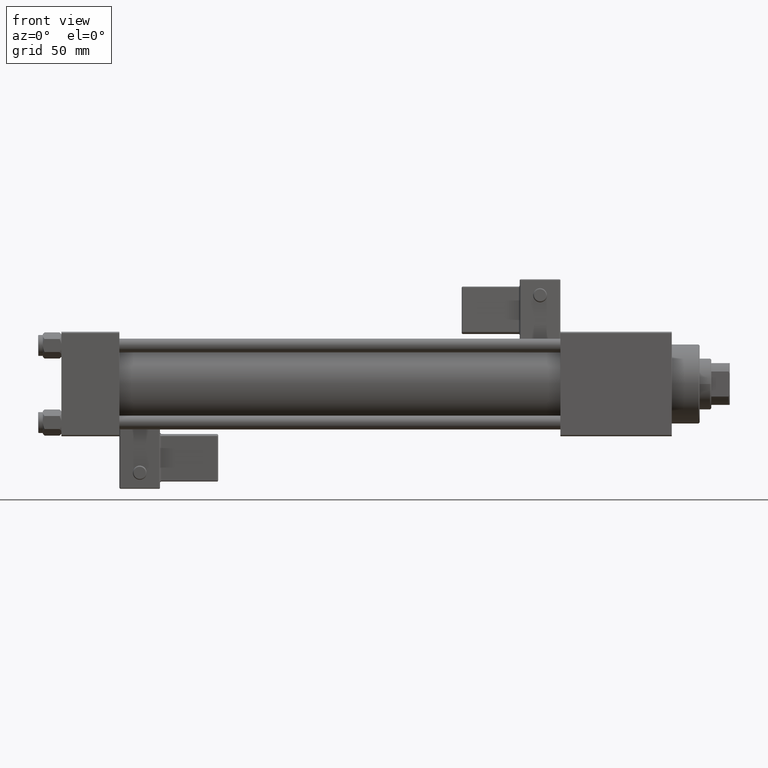
[diagram: clean part render]
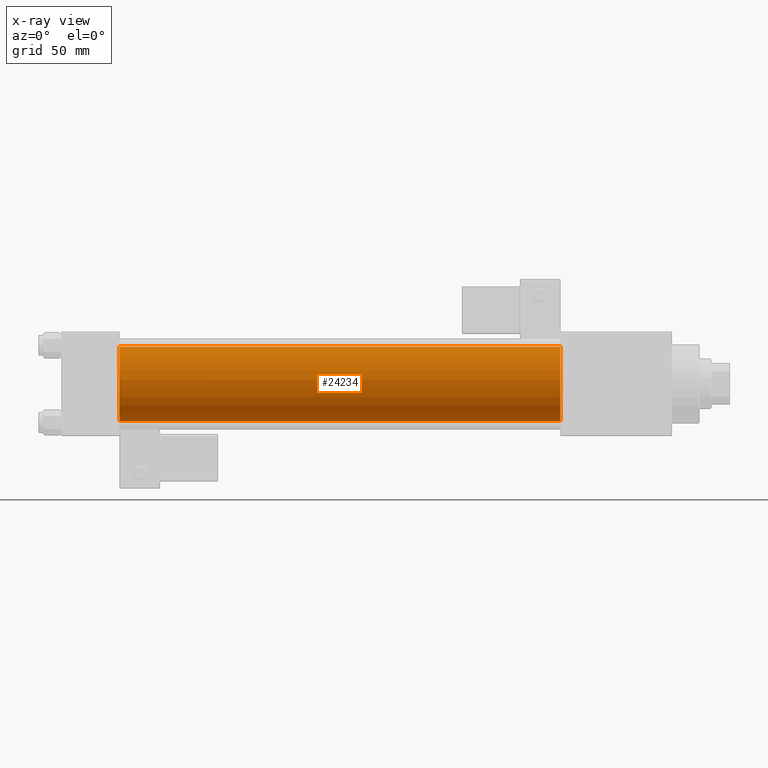
[diagram: x-ray — body ghosted, one internal face saturated and labeled with its STEP entity id]
A machine part, front view, then the same camera in x-ray: the body is ghosted and one INTERNAL B-rep face — a face not visible from any outside direction — is saturated and labeled: STEP entity #24234.
In plain terms, the highlighted cylindrical surface (partial cylindrical patch) has radius 16 mm, axis along (-1, -0, -0).
Its self-contained STEP definition (entity closure, byte-faithful):
#404 = EDGE_CURVE ( 'NONE', #5961, #50316, #11576, .T. ) ;
#864 = DIRECTION ( 'NONE',  ( -1.000000000000000000, -0.000000000000000000, -0.000000000000000000 ) ) ;
#2237 = CARTESIAN_POINT ( 'NONE',  ( 215.0000000000000000, -6.426503353294456087E-16, -16.00000000000000000 ) ) ;
#5961 = VERTEX_POINT ( 'NONE', #41786 ) ;
#7196 = AXIS2_PLACEMENT_3D ( 'NONE', #34177, #50753, #46677 ) ;
#9294 = CARTESIAN_POINT ( 'NONE',  ( 215.0000000000000000, -2.602085213965210642E-15, 16.00000000000000000 ) ) ;
#9965 = CYLINDRICAL_SURFACE ( 'NONE', #7196, 16.00000000000000000 ) ;
#11576 = LINE ( 'NONE', #9294, #46477 ) ;
#16443 = ORIENTED_EDGE ( 'NONE', *, *, #404, .F. ) ;
#16805 = CARTESIAN_POINT ( 'NONE',  ( 25.00000000000000000, -2.602085213965210642E-15, 0.000000000000000000 ) ) ;
#17591 = FACE_OUTER_BOUND ( 'NONE', #34298, .T. ) ;
#20036 = LINE ( 'NONE', #39912, #42134 ) ;
#24133 = DIRECTION ( 'NONE',  ( -1.000000000000000000, -0.000000000000000000, -0.000000000000000000 ) ) ;
#24234 = ADVANCED_FACE ( 'NONE', ( #17591 ), #9965, .F. ) ;
#25784 = DIRECTION ( 'NONE',  ( 0.000000000000000000, 0.000000000000000000, -1.000000000000000000 ) ) ;
#26307 = DIRECTION ( 'NONE',  ( 1.000000000000000000, 0.000000000000000000, 0.000000000000000000 ) ) ;
#26945 = AXIS2_PLACEMENT_3D ( 'NONE', #33653, #26307, #42617 ) ;
#27437 = CARTESIAN_POINT ( 'NONE',  ( 25.00000000000000000, -6.426503353294456087E-16, -16.00000000000000000 ) ) ;
#29478 = EDGE_CURVE ( 'NONE', #5961, #35103, #52982, .T. ) ;
#29715 = ORIENTED_EDGE ( 'NONE', *, *, #43715, .T. ) ;
#29920 = ORIENTED_EDGE ( 'NONE', *, *, #41316, .F. ) ;
#33395 = DIRECTION ( 'NONE',  ( 1.000000000000000000, 0.000000000000000000, 0.000000000000000000 ) ) ;
#33653 = CARTESIAN_POINT ( 'NONE',  ( 215.0000000000000000, -2.602085213965210642E-15, 0.000000000000000000 ) ) ;
#33803 = VERTEX_POINT ( 'NONE', #27437 ) ;
#34177 = CARTESIAN_POINT ( 'NONE',  ( 215.0000000000000000, -2.602085213965210642E-15, 0.000000000000000000 ) ) ;
#34298 = EDGE_LOOP ( 'NONE', ( #36196, #29715, #29920, #16443 ) ) ;
#35078 = AXIS2_PLACEMENT_3D ( 'NONE', #16805, #33395, #25784 ) ;
#35103 = VERTEX_POINT ( 'NONE', #2237 ) ;
#36196 = ORIENTED_EDGE ( 'NONE', *, *, #29478, .T. ) ;
#36800 = CIRCLE ( 'NONE', #35078, 16.00000000000000000 ) ;
#39192 = CARTESIAN_POINT ( 'NONE',  ( 25.00000000000000000, -2.602085213965210642E-15, 16.00000000000000000 ) ) ;
#39912 = CARTESIAN_POINT ( 'NONE',  ( 215.0000000000000000, -6.426503353294456087E-16, -16.00000000000000000 ) ) ;
#41316 = EDGE_CURVE ( 'NONE', #50316, #33803, #36800, .T. ) ;
#41786 = CARTESIAN_POINT ( 'NONE',  ( 215.0000000000000000, -2.602085213965210642E-15, 16.00000000000000000 ) ) ;
#42134 = VECTOR ( 'NONE', #24133, 1000.000000000000000 ) ;
#42617 = DIRECTION ( 'NONE',  ( 0.000000000000000000, 0.000000000000000000, -1.000000000000000000 ) ) ;
#43715 = EDGE_CURVE ( 'NONE', #35103, #33803, #20036, .T. ) ;
#46477 = VECTOR ( 'NONE', #864, 1000.000000000000000 ) ;
#46677 = DIRECTION ( 'NONE',  ( 0.000000000000000000, 0.000000000000000000, 1.000000000000000000 ) ) ;
#50316 = VERTEX_POINT ( 'NONE', #39192 ) ;
#50753 = DIRECTION ( 'NONE',  ( -1.000000000000000000, -0.000000000000000000, -0.000000000000000000 ) ) ;
#52982 = CIRCLE ( 'NONE', #26945, 16.00000000000000000 ) ;